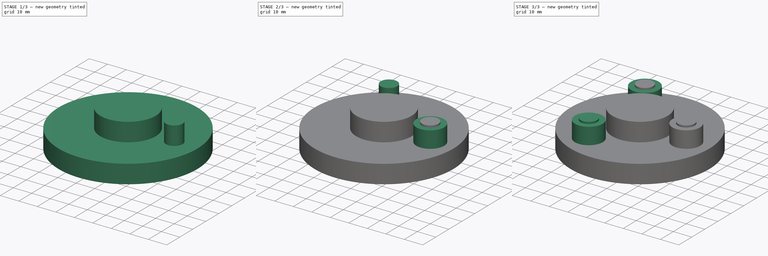
[diagram: build sequence overview — one tinted view per stage of 3, left to right]
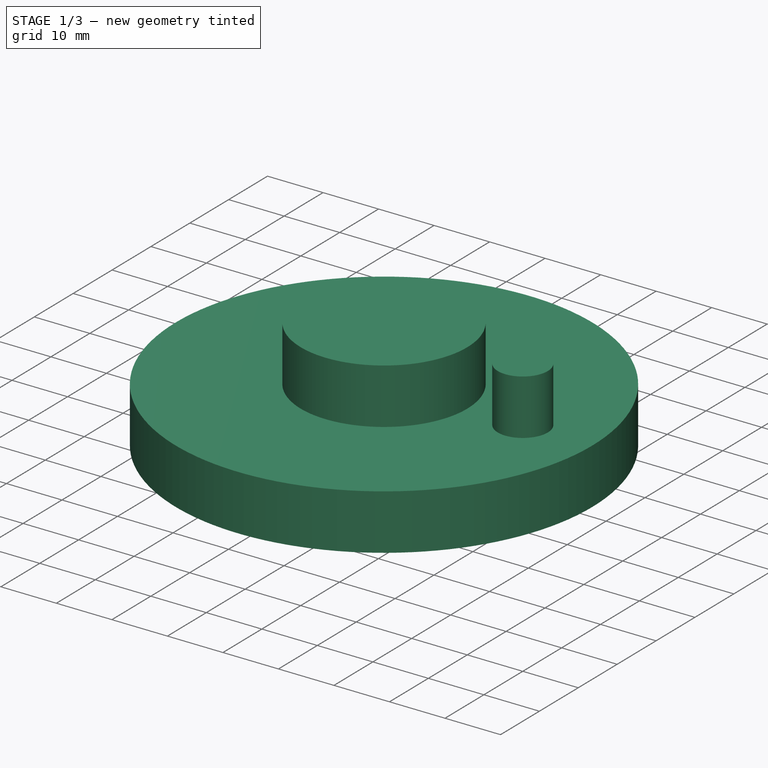
[diagram: stage 1 of 3 — iso view after this stage's code; geometry added in this stage tinted green]
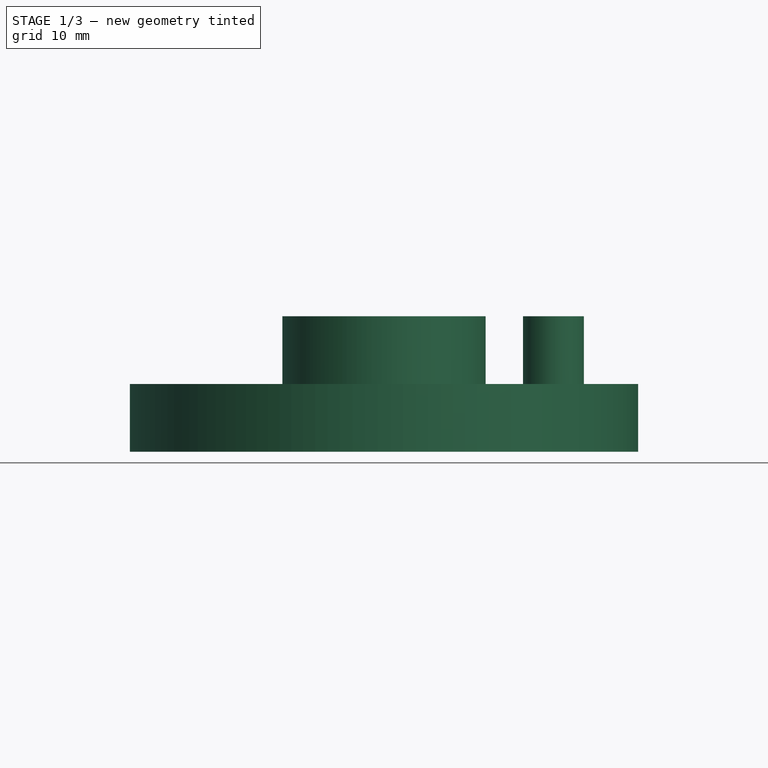
[diagram: stage 1 of 3 — front view after this stage's code; geometry added in this stage tinted green]
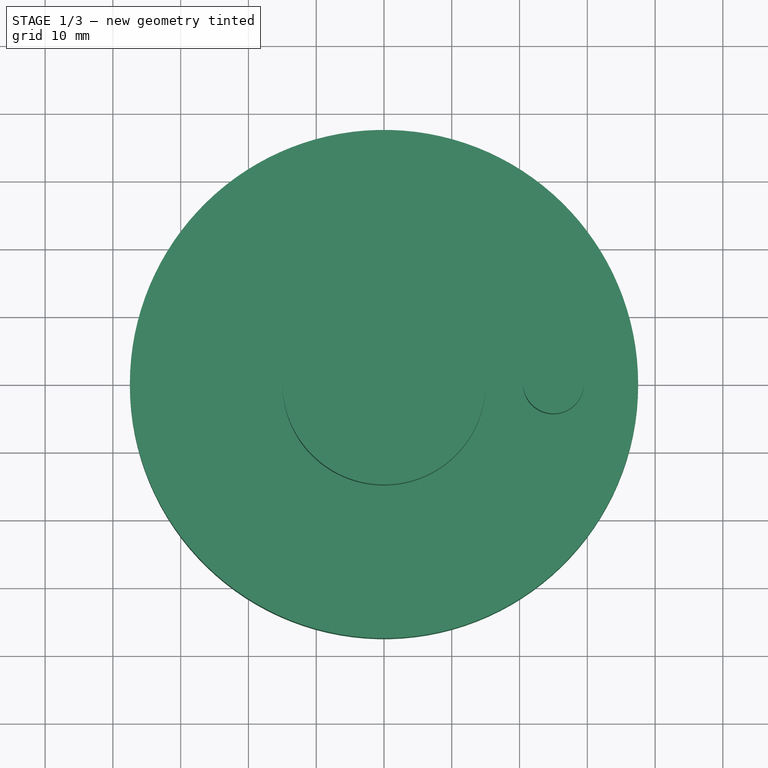
[diagram: stage 1 of 3 — top view after this stage's code; geometry added in this stage tinted green]
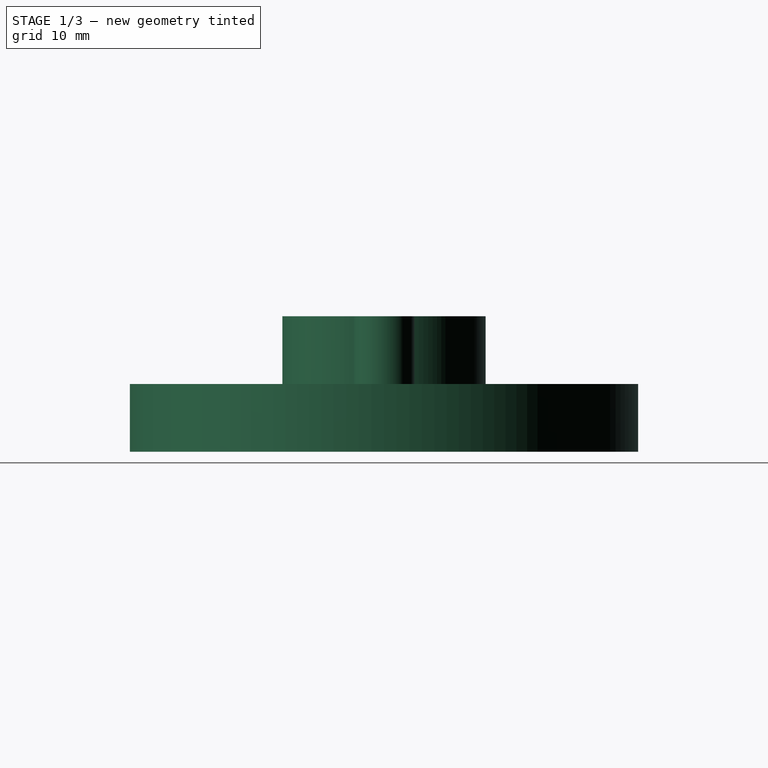
[diagram: stage 1 of 3 — right view after this stage's code; geometry added in this stage tinted green]
FCSTD DOCUMENT  (FreeCAD 1.0R39319 (Git))
Label: Circular_Flange_75mm
License: All rights reserved
LicenseURL: https://en.wikipedia.org/wiki/All_rights_reserved
objects: Sketcher::SketchObject×8, PartDesign::Pad×8, PartDesign::Body×1
note: 41 computed .brp shape members not serialized (recipe doc carries the construction recipe); baked Part::Feature solids carry a one-line shape summary decoded from their .brp

FEATURE [Sketcher::SketchObject] Sketch_1
  ArcFitTolerance = 1e-06
  AttachmentSupport = -> [XY_Plane]
  FullyConstrained = false
  MakeInternals = false
  MapMode = 5
  sketch-geometry (1):
    g0: Circle CenterX=0 CenterY=0 CenterZ=0 NormalX=0 NormalY=0 NormalZ=1 AngleXU=0 Radius=37.5
FEATURE [PartDesign::Pad] Pad_1
  Direction = (0,0,1)
  Length = 10
  Length2 = 10
  Profile = -> Sketch_1
  Refine = true
  Suppressed = false
  Type = 0
FEATURE [Sketcher::SketchObject] Sketch_2
  ArcFitTolerance = 1e-06
  AttachmentSupport = -> [Pad_1]
  FullyConstrained = false
  MakeInternals = false
  MapMode = 5
  Placement = pos=(0,0,10) rot=(0,0,1;0rad)
  sketch-geometry (1):
    g0: Circle CenterX=0 CenterY=0 CenterZ=0 NormalX=0 NormalY=0 NormalZ=1 AngleXU=0 Radius=15
FEATURE [PartDesign::Pad] Pad_2
  BaseFeature = -> Pad_1
  Direction = (0,0,1)
  Length = 10
  Length2 = 10
  Profile = -> Sketch_2
  Refine = true
  Suppressed = false
  Type = 0
FEATURE [Sketcher::SketchObject] Sketch_3
  ArcFitTolerance = 1e-06
  AttachmentSupport = -> [Pad_2]
  FullyConstrained = false
  MakeInternals = false
  MapMode = 5
  Placement = pos=(0,0,10) rot=(0,0,1;0rad)
  sketch-geometry (1):
    g0: Circle CenterX=25 CenterY=0 CenterZ=0 NormalX=0 NormalY=0 NormalZ=1 AngleXU=0 Radius=4.5
FEATURE [PartDesign::Pad] Pad_3
  BaseFeature = -> Pad_2
  Direction = (0,0,1)
  Length = 10
  Length2 = 10
  Profile = -> Sketch_3
  Refine = true
  Suppressed = false
  Type = 0
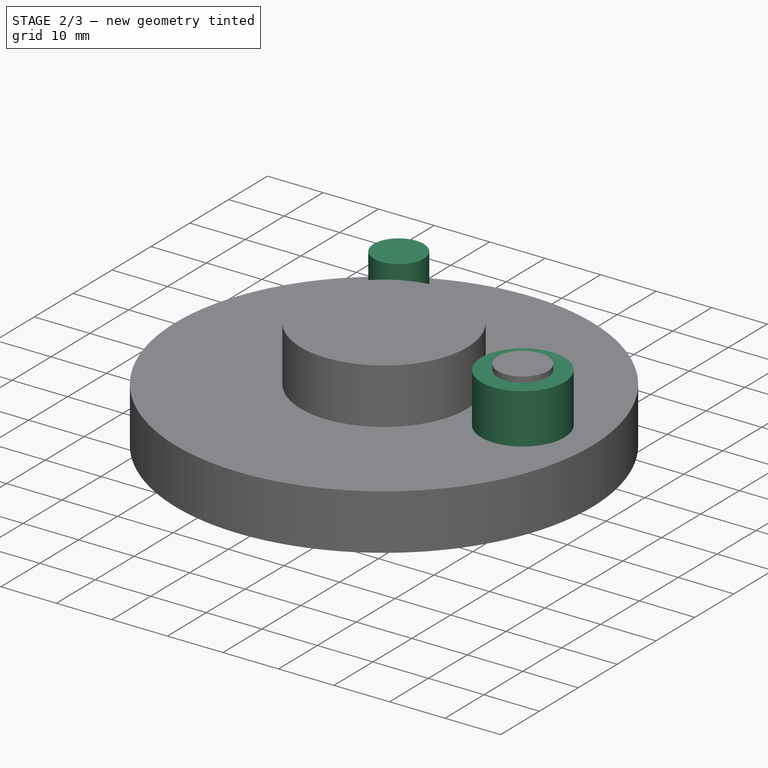
[diagram: stage 2 of 3 — iso view after this stage's code; geometry added in this stage tinted green]
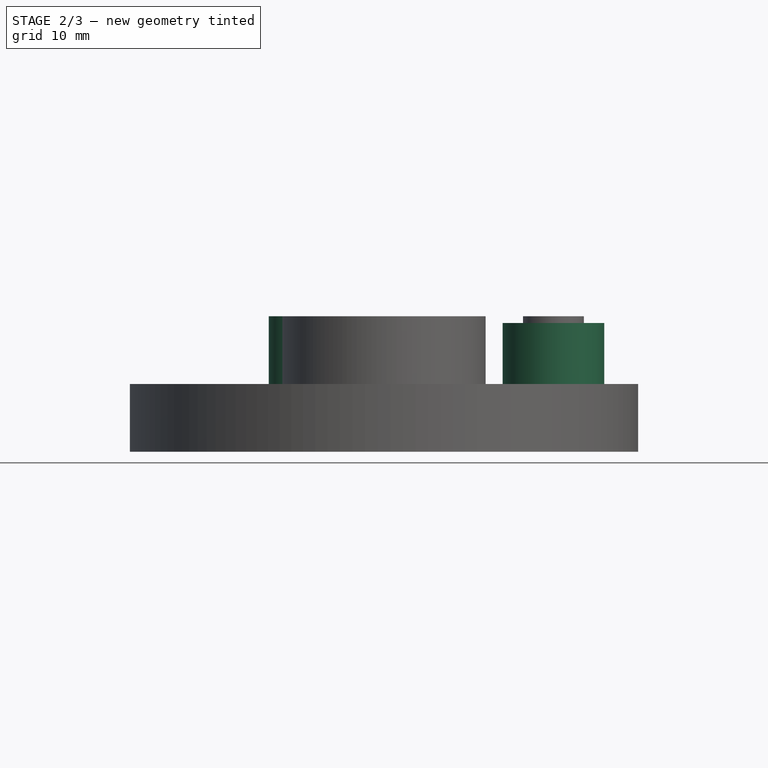
[diagram: stage 2 of 3 — front view after this stage's code; geometry added in this stage tinted green]
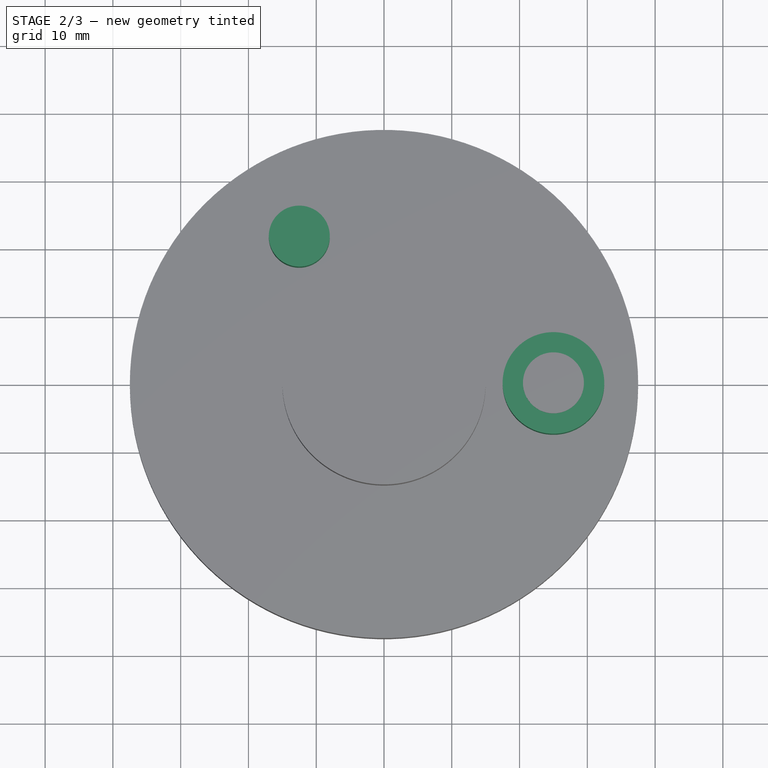
[diagram: stage 2 of 3 — top view after this stage's code; geometry added in this stage tinted green]
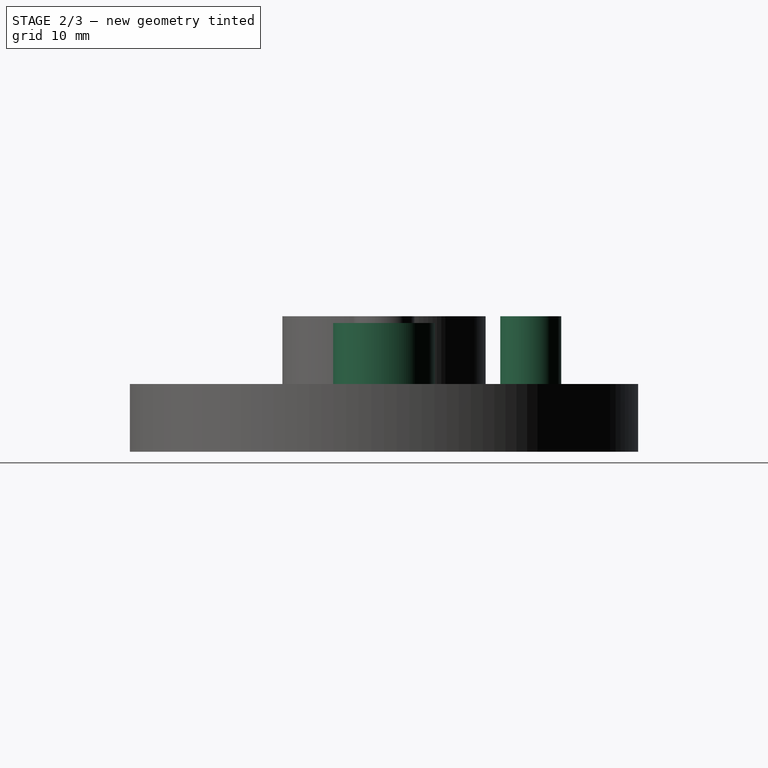
[diagram: stage 2 of 3 — right view after this stage's code; geometry added in this stage tinted green]
FEATURE [Sketcher::SketchObject] Sketch_4
  ArcFitTolerance = 1e-06
  AttachmentSupport = -> [Pad_3]
  FullyConstrained = false
  MakeInternals = false
  MapMode = 5
  Placement = pos=(0,0,10) rot=(0,0,1;0rad)
  sketch-geometry (1):
    g0: Circle CenterX=25 CenterY=0 CenterZ=0 NormalX=0 NormalY=0 NormalZ=1 AngleXU=0 Radius=7.5
FEATURE [PartDesign::Pad] Pad_4
  BaseFeature = -> Pad_3
  Direction = (0,0,1)
  Length = 9
  Length2 = 10
  Profile = -> Sketch_4
  Refine = true
  Suppressed = false
  Type = 0
FEATURE [Sketcher::SketchObject] Sketch_5
  ArcFitTolerance = 1e-06
  AttachmentSupport = -> [Pad_4]
  FullyConstrained = false
  MakeInternals = false
  MapMode = 5
  Placement = pos=(0,0,10) rot=(0,0,1;0rad)
  sketch-geometry (1):
    g0: Circle CenterX=-12.5 CenterY=21.6506 CenterZ=0 NormalX=0 NormalY=0 NormalZ=1 AngleXU=0 Radius=4.5
FEATURE [PartDesign::Pad] Pad_5
  BaseFeature = -> Pad_4
  Direction = (0,0,1)
  Length = 10
  Length2 = 10
  Profile = -> Sketch_5
  Refine = true
  Suppressed = false
  Type = 0
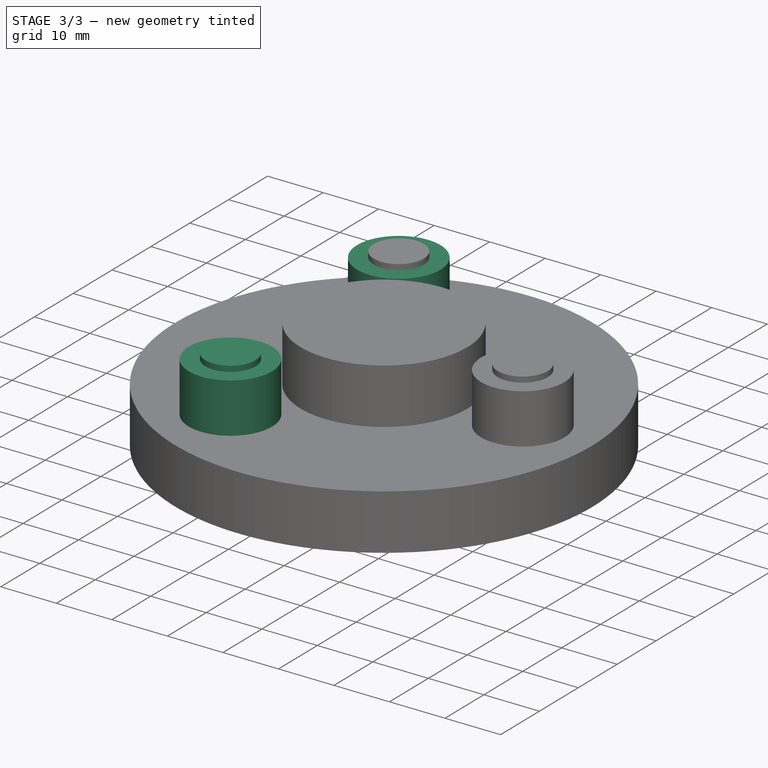
[diagram: stage 3 of 3 — iso view after this stage's code; geometry added in this stage tinted green]
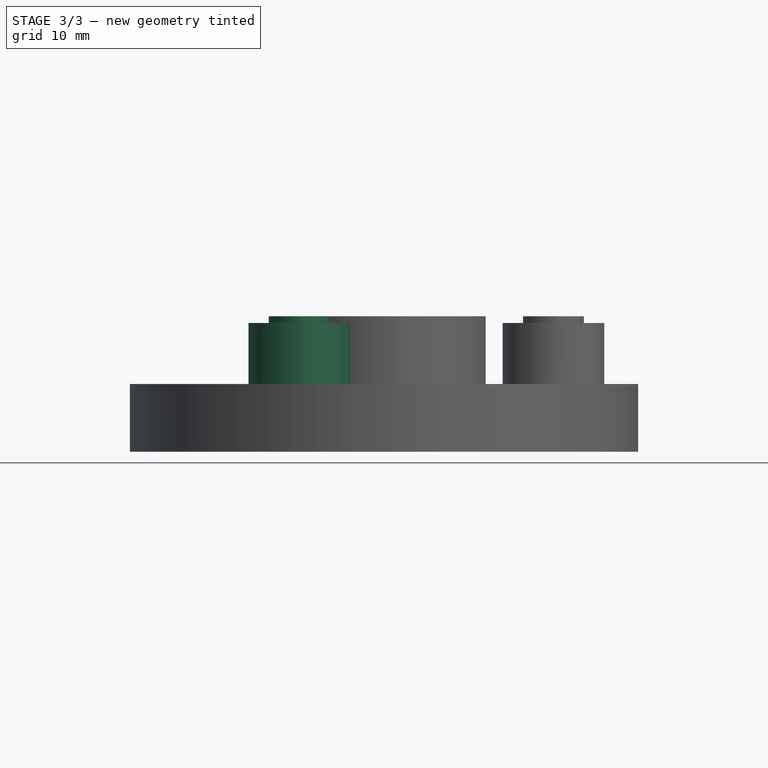
[diagram: stage 3 of 3 — front view after this stage's code; geometry added in this stage tinted green]
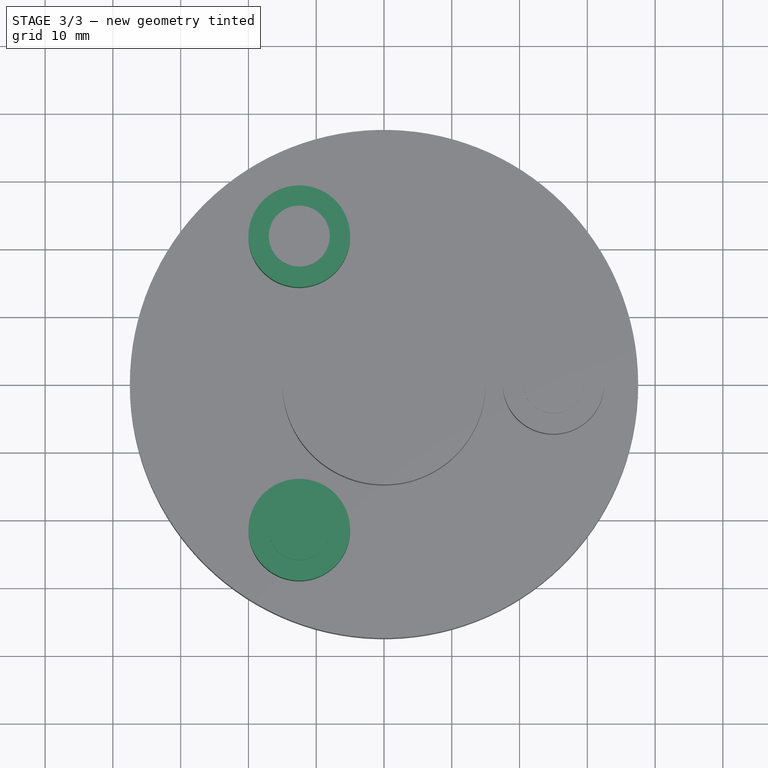
[diagram: stage 3 of 3 — top view after this stage's code; geometry added in this stage tinted green]
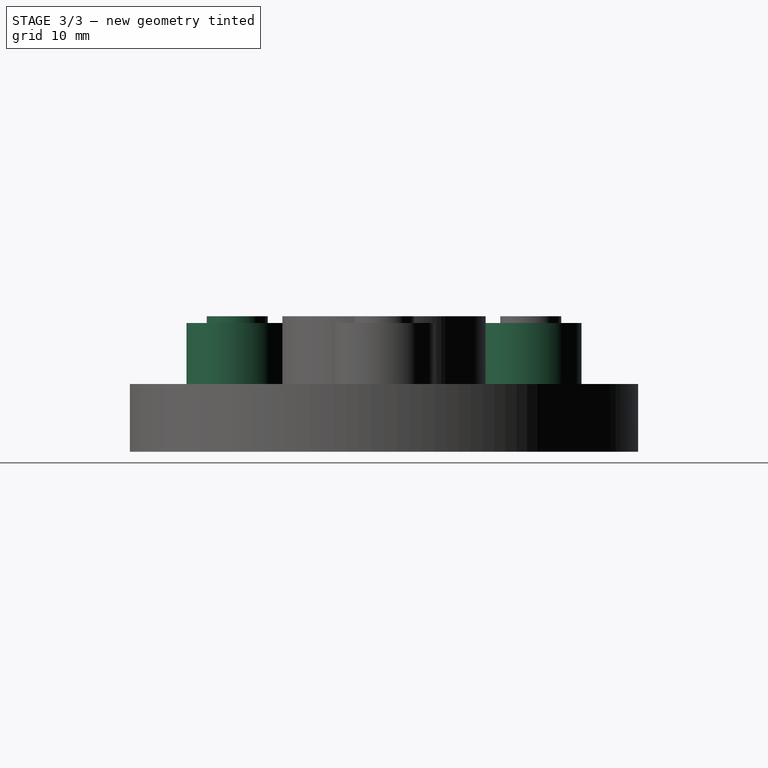
[diagram: stage 3 of 3 — right view after this stage's code; geometry added in this stage tinted green]
FEATURE [Sketcher::SketchObject] Sketch_6
  ArcFitTolerance = 1e-06
  AttachmentSupport = -> [Pad_5]
  FullyConstrained = false
  MakeInternals = false
  MapMode = 5
  Placement = pos=(0,0,10) rot=(0,0,1;0rad)
  sketch-geometry (1):
    g0: Circle CenterX=-12.5 CenterY=21.6506 CenterZ=0 NormalX=0 NormalY=0 NormalZ=1 AngleXU=0 Radius=7.5
FEATURE [PartDesign::Pad] Pad_6
  BaseFeature = -> Pad_5
  Direction = (0,0,1)
  Length = 9
  Length2 = 10
  Profile = -> Sketch_6
  Refine = true
  Suppressed = false
  Type = 0
FEATURE [Sketcher::SketchObject] Sketch_7
  ArcFitTolerance = 1e-06
  AttachmentSupport = -> [Pad_6]
  FullyConstrained = false
  MakeInternals = false
  MapMode = 5
  Placement = pos=(0,0,10) rot=(0,0,1;0rad)
  sketch-geometry (1):
    g0: Circle CenterX=-12.5 CenterY=-21.6506 CenterZ=0 NormalX=0 NormalY=0 NormalZ=1 AngleXU=0 Radius=4.5
FEATURE [PartDesign::Pad] Pad_7
  BaseFeature = -> Pad_6
  Direction = (0,0,1)
  Length = 10
  Length2 = 10
  Profile = -> Sketch_7
  Refine = true
  Suppressed = false
  Type = 0
FEATURE [Sketcher::SketchObject] Sketch_8
  ArcFitTolerance = 1e-06
  AttachmentSupport = -> [Pad_7]
  FullyConstrained = false
  MakeInternals = false
  MapMode = 5
  Placement = pos=(0,0,10) rot=(0,0,1;0rad)
  sketch-geometry (1):
    g0: Circle CenterX=-12.5 CenterY=-21.6506 CenterZ=0 NormalX=0 NormalY=0 NormalZ=1 AngleXU=0 Radius=7.5
FEATURE [PartDesign::Pad] Pad_8
  BaseFeature = -> Pad_7
  Direction = (0,0,1)
  Length = 9
  Length2 = 10
  Profile = -> Sketch_8
  Refine = true
  Suppressed = false
  Type = 0
FEATURE [PartDesign::Body] Body
  AllowCompound = false
  Group = -> [Sketch_1,Pad_1,Sketch_2,Pad_2,Sketch_3,Pad_3,Sketch_4,Pad_4,Sketch_5,Pad_5,Sketch_6,Pad_6,Sketch_7,Pad_7,Sketch_8,Pad_8]
  Origin = -> Origin
  Tip = -> Pad_8
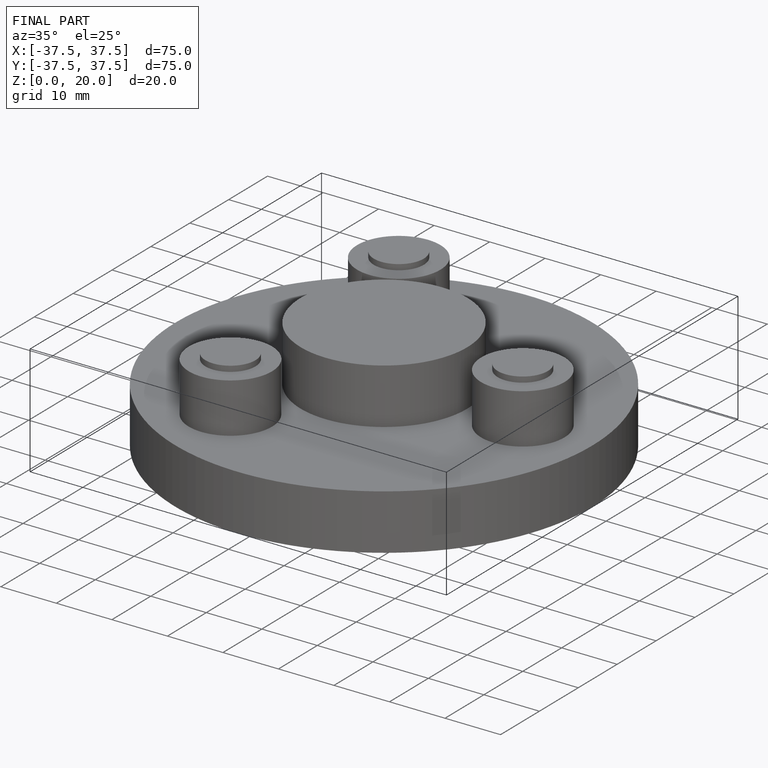
[diagram: finished part — iso view with bounding-box wireframe]
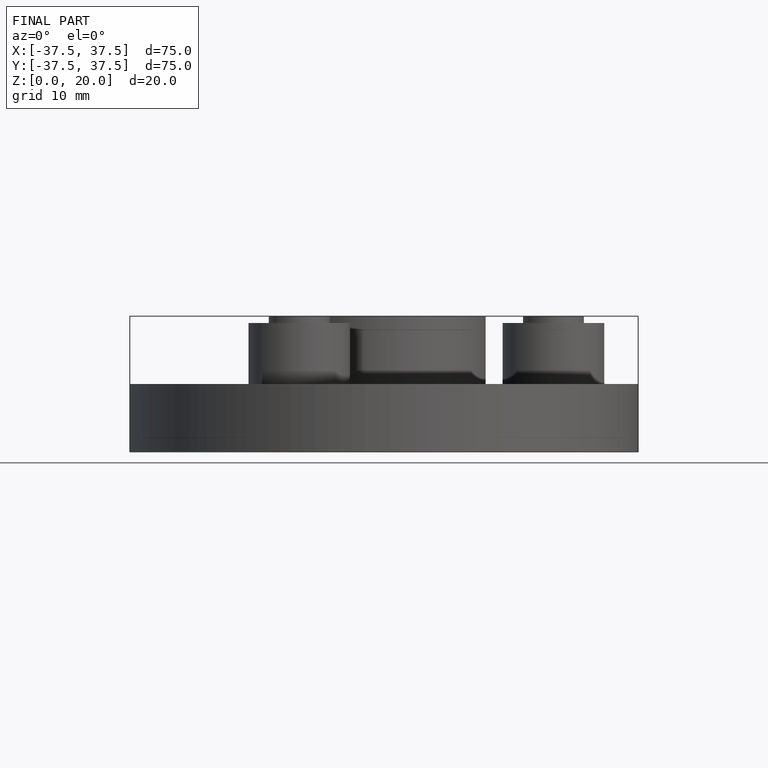
[diagram: finished part — front view with bounding-box wireframe]
